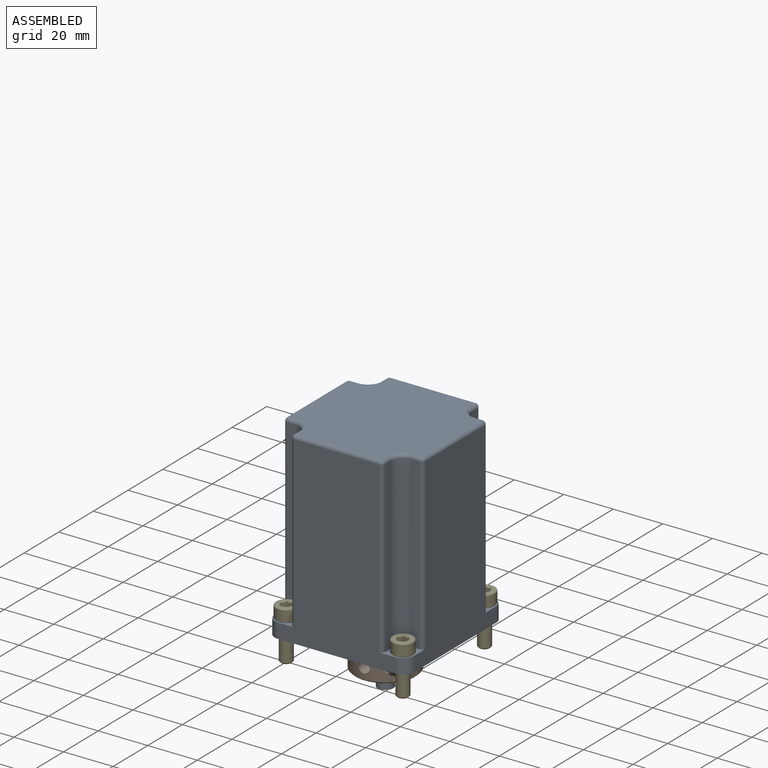
[diagram: assembled view]
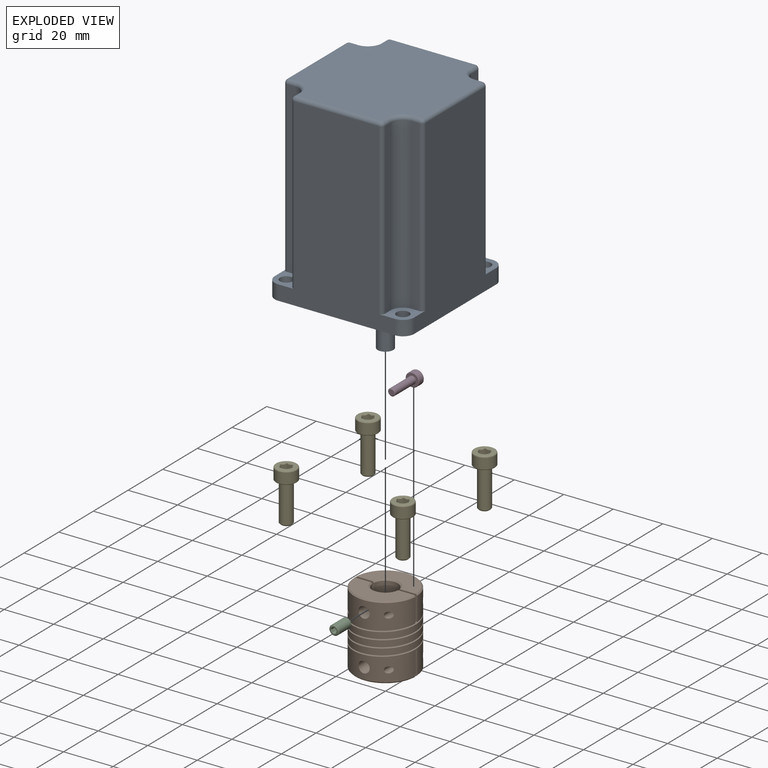
[diagram: exploded view]
GUIDED TOUR — FREECAD ASSEMBLY "NEMA23-76"

This assembly has 5 components, labeled P0..P4 below (a component is one placed body or linked part; the same part can appear more than once), held together by 0 modeled joints plus 4 derived contact edges. A joint is a constraint between two components; its type names the relative motion it leaves free:
  CONTACT — a derived adjacency edge — the two components touch in the source model (clearance under 2% of the assembly's diagonal); it is measured from the geometry, not a modeled constraint.
Axis/direction vectors are unit vectors and 'through' points are millimeter coordinates, both in the assembly's world frame.

MATES
  1. CONTACT "contact_0_1": P0 <-> P1, contact direction (0.000, 0.000, -1.000) through (3.99, 0.90, -1.58) mm (derived from contact, not a modeled constraint)
  2. CONTACT "contact_0_4": P0 <-> P4, contact direction (0.000, 0.000, -1.000) through (25.92, 22.56, 5.98) mm (derived from contact, not a modeled constraint)
  3. CONTACT "contact_1_2": P1 <-> P2, contact direction (0.000, 0.000, 1.000) through (-0.26, -5.00, 7.88) mm (derived from contact, not a modeled constraint)
  4. CONTACT "contact_1_3": P1 <-> P3, contact direction (0.000, 0.000, 1.000) through (6.64, 3.99, 10.74) mm (derived from contact, not a modeled constraint)

ASSEMBLY ORDER
  1. P1 — the base component [order heuristic]
  2. P4 — core [order heuristic]
  3. P3 — core [order heuristic]
  4. P0 — core [order heuristic]
  5. P2 [order verified]
Order-tag legend:
  [order verified] — this step's position reverses a verified removal order: the component was checked to insert without passing through the ones already placed.
  [order heuristic] — the first 4 components form the assembly's core: parts whose collision-free extraction could not be verified, listed in mate-graph order.

Of the 5 components, 2 carry a construction recipe — the FreeCAD feature program (sketches with constraints, then the solid features that consume them) that regenerates the part from scratch, quoted from this document or from the linked companion document it references; the rest are supplied as boundary geometry only. The tour below walks the components in assembly order: each is shown spotlighted twice — in the assembled view, then in the exploded view, where a leader line traces a displaced component back to its assembled socket (components that stay in place when exploded have no leader line; saturated green if recipe-attached, orange if geometry-only; every other component desaturated gray) — followed by its recipe or geometry summary and the mates that hold it.
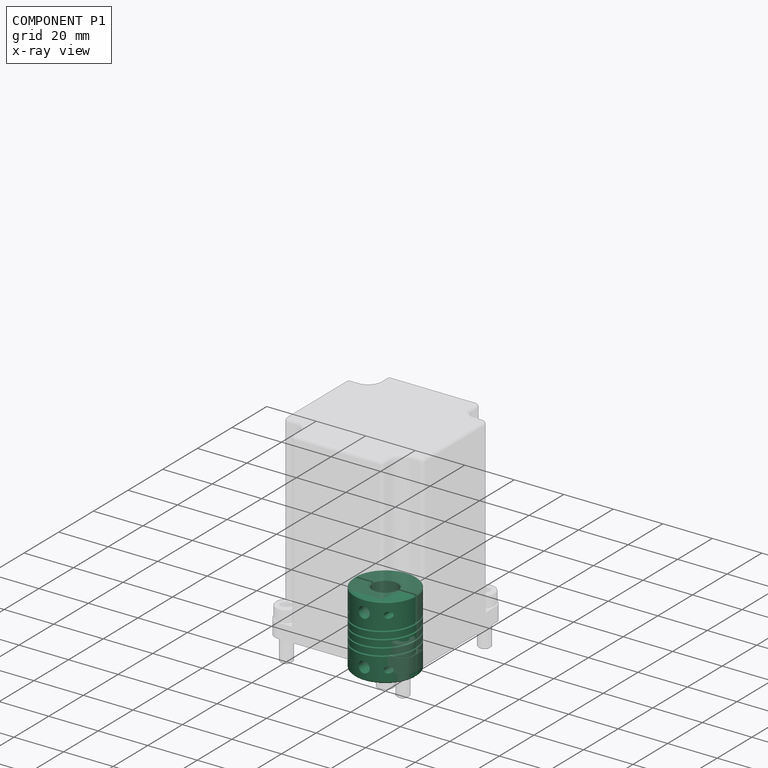
[diagram: component P1 — x-ray view]
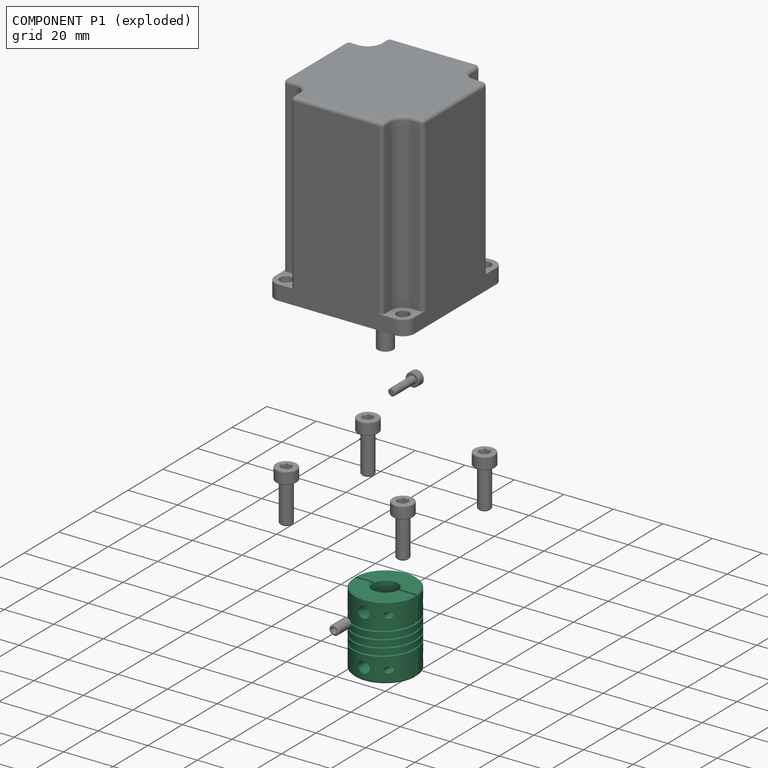
[diagram: component P1 — exploded]
COMPONENT P1 — recipe-attached ("Link001(Coupling)", modeled in this document).
Held by: resting contact with P0 (derived edge); resting contact with P2 (derived edge); resting contact with P3 (derived edge).
Construction recipe (the document's own serialized feature program — sketch geometry with constraints, then the solid features built on it; lengths are millimeters unless a unit is written):

FEATURE [Sketcher::SketchObject] Sketch004
  FullyConstrained = true
  MapMode = 5
  Support = -> [XY_Plane001]
  sketch-geometry (1):
    g0: Circle CenterX=0 CenterY=0 CenterZ=0 NormalX=0 NormalY=0 NormalZ=1 AngleXU=0 Radius=12.5
  constraints (2):
    c: Coincident(g0,g-1)
    c: Diameter(g0) = 25
FEATURE [PartDesign::Pad] Pad004
  ClaimChildren = false
  Direction = (1,1,1)
  Fit = 0
  FitJoin = 0
  InnerFit = 0
  InnerFitJoin = 0
  InnerTaperAngle = 0
  InnerTaperAngleRev = 0
  Length = 30
  Length2 = 100
  Linearize = true
  Midplane = true
  NewSolid = false
  Profile = -> Sketch004
  Refine = true
  Suppress = false
  Type = 0
FEATURE [Sketcher::SketchObject] Sketch005
  FullyConstrained = true
  MapMode = 5
  Placement = pos=(0,0,15) rot=(0,0,1;0rad)
  Support = -> [Pad004]
  sketch-geometry (1):
    g0: Circle CenterX=0 CenterY=0 CenterZ=0 NormalX=0 NormalY=0 NormalZ=1 AngleXU=0 Radius=3.175
  constraints (2):
    c: Coincident(g0,g-1)
    c: Diameter(g0) = 6.35
FEATURE [PartDesign::Pocket] Pocket
  BaseFeature = -> Pad004
  ClaimChildren = false
  Fit = 0
  FitJoin = 0
  InnerFit = 0
  InnerFitJoin = 0
  InnerTaperAngle = 0
  InnerTaperAngleRev = 0
  Length = 5
  Length2 = 100
  Linearize = true
  NewSolid = false
  Profile = -> Sketch005
  Refine = true
  Suppress = false
  Type = 1
FEATURE [Sketcher::SketchObject] Sketch006
  FullyConstrained = true
  MapMode = 5
  Placement = pos=(0,0,15) rot=(0,0,1;0rad)
  Support = -> [Pocket]
  sketch-geometry (1):
    g0: Circle CenterX=0 CenterY=0 CenterZ=0 NormalX=0 NormalY=0 NormalZ=1 AngleXU=0 Radius=5
  constraints (2):
    c: Coincident(g0,g-1)
    c: Diameter(g0) = 10
FEATURE [PartDesign::Pocket] Pocket001
  BaseFeature = -> Pocket
  ClaimChildren = false
  Fit = 0
  FitJoin = 0
  InnerFit = 0
  InnerFitJoin = 0
  InnerTaperAngle = 0
  InnerTaperAngleRev = 0
  Length = 21.5
  Length2 = 100
  Linearize = true
  NewSolid = false
  Profile = -> Sketch006
  Refine = true
  Suppress = false
  Type = 0
FEATURE [Sketcher::SketchObject] Sketch007
  FullyConstrained = true
  MapMode = 5
  Placement = pos=(0,0,15) rot=(0,0,1;0rad)
  Support = -> [Pocket001]
  sketch-geometry (4):
    g0: LineSegment StartX=-11.5 StartY=0.5 StartZ=0 EndX=13.5 EndY=0.5 EndZ=0
    g1: LineSegment StartX=13.5 StartY=0.5 StartZ=0 EndX=13.5 EndY=-0.5 EndZ=0
    g2: LineSegment StartX=13.5 StartY=-0.5 StartZ=0 EndX=-11.5 EndY=-0.5 EndZ=0
    g3: LineSegment StartX=-11.5 StartY=-0.5 StartZ=0 EndX=-11.5 EndY=0.5 EndZ=0
  constraints (11):
    c: Coincident(g0,g1)
    c: Coincident(g1,g2)
    c: Coincident(g2,g3)
    c: Coincident(g3,g0)
    c: Horizontal(g0)
    c: Horizontal(g2)
    c: DistanceY(g1,g1) = 1
    c: Symmetric(g1,g0,g-1)
    c: DistanceX(g2,g2) = 25
    c: Vertical(g3)
    c: DistanceX(g2,g-1) = 11.5
FEATURE [Sketcher::SketchObject] Sketch008
  FullyConstrained = true
  MapMode = 5
  Placement = pos=(0,0,0) rot=(1,0,0;1.5708rad)
  Support = -> [XZ_Plane001]
  sketch-geometry (2):
    g0: Circle CenterX=0 CenterY=10 CenterZ=0 NormalX=0 NormalY=0 NormalZ=1 AngleXU=0 Radius=1.75
    g1: Circle CenterX=0 CenterY=-10 CenterZ=0 NormalX=0 NormalY=0 NormalZ=1 AngleXU=0 Radius=1.75
  constraints (5):
    c: PointOnObject(g0,g-2)
    c: Equal(g1,g0)
    c: Symmetric(g0,g1,g-1)
    c: DistanceY(g1,g0) = 20
    c: Diameter(g0) = 3.5
FEATURE [PartDesign::Hole] Hole
  BaseFeature = -> Pocket001
  ClaimChildren = false
  CustomThreadClearance = 0
  Depth = 25
  DepthType = 1
  Diameter = 4.5
  DrillForDepth = false
  DrillPoint = 1
  DrillPointAngle = 118
  Fit = 0
  FitJoin = 0
  HoleCutCountersinkAngle = 90
  HoleCutCustomValues = false
  HoleCutDepth = 0
  HoleCutDiameter = 6.1
  HoleCutType = 0
  InnerFit = 0
  InnerFitJoin = 0
  ModelThread = false
  NewSolid = false
  Profile = -> Sketch008
  Refine = true
  Reversed = true
  Suppress = false
  Tapered = false
  TaperedAngle = 90
  ThreadClass = 0
  ThreadDepth = 93.5288
  ThreadDepthType = 0
  ThreadDirection = 0
  ThreadFit = 0
  ThreadSize = 0
  ThreadType = 0
  Threaded = false
  UseCustomThreadClearance = false
FEATURE [Sketcher::SketchObject] Sketch009
  FullyConstrained = true
  MapMode = 5
  Placement = pos=(0,0,0) rot=(1,0,0;1.5708rad)
  Support = -> [XZ_Plane001]
  sketch-geometry (2):
    g0: Circle CenterX=8 CenterY=10 CenterZ=0 NormalX=0 NormalY=0 NormalZ=1 AngleXU=0 Radius=1.25
    g1: Circle CenterX=8 CenterY=-10 CenterZ=0 NormalX=0 NormalY=0 NormalZ=1 AngleXU=0 Radius=1.25
  constraints (5):
    c: Symmetric(g0,g1,g-1)
    c: DistanceX(g-1,g0) = 8
    c: DistanceY(g1,g0) = 20
    c: Equal(g0,g1)
    c: Diameter(g0) = 2.5
FEATURE [Sketcher::SketchObject] Sketch010
  FullyConstrained = true
  MapMode = 5
  Placement = pos=(0,0,0) rot=(1,0,0;1.5708rad)
  Support = -> [XZ_Plane001]
  sketch-geometry (2):
    g0: Circle CenterX=8 CenterY=10 CenterZ=0 NormalX=0 NormalY=0 NormalZ=1 AngleXU=0 Radius=1.25
    g1: Circle CenterX=8 CenterY=-10 CenterZ=0 NormalX=0 NormalY=0 NormalZ=1 AngleXU=0 Radius=1.25
  constraints (5):
    c: Symmetric(g0,g1,g-1)
    c: DistanceX(g-1,g0) = 8
    c: DistanceY(g1,g0) = 20
    c: Equal(g0,g1)
    c: Diameter(g0) = 2.5
FEATURE [Sketcher::SketchObject] Sketch011
  AttachmentOffset = pos=(0,0,-4) rot=(0,0,1;0rad)
  FullyConstrained = true
  MapMode = 5
  Placement = pos=(0,4,9e-16) rot=(1,0,0;1.5708rad)
  Support = -> [XZ_Plane001]
  sketch-geometry (2):
    g0: Circle CenterX=8 CenterY=10 CenterZ=0 NormalX=0 NormalY=0 NormalZ=1 AngleXU=0 Radius=1.25
    g1: Circle CenterX=8 CenterY=-10 CenterZ=0 NormalX=0 NormalY=0 NormalZ=1 AngleXU=0 Radius=1.25
  constraints (5):
    c: Symmetric(g0,g1,g-1)
    c: DistanceX(g-1,g0) = 8
    c: DistanceY(g1,g0) = 20
    c: Equal(g0,g1)
    c: Diameter(g0) = 2.5
FEATURE [PartDesign::Hole] Hole001
  BaseFeature = -> Hole
  ClaimChildren = false
  CustomThreadClearance = 0
  Depth = 25
  DepthType = 1
  Diameter = 2.5
  DrillForDepth = false
  DrillPoint = 1
  DrillPointAngle = 118
  Fit = 0
  FitJoin = 0
  HoleCutCountersinkAngle = 90
  HoleCutCustomValues = false
  HoleCutDepth = 0
  HoleCutDiameter = 6.1
  HoleCutType = 0
  InnerFit = 0
  InnerFitJoin = 0
  ModelThread = false
  NewSolid = false
  Profile = -> Sketch009
  Refine = true
  Reversed = true
  Suppress = false
  Tapered = false
  TaperedAngle = 90
  ThreadClass = 0
  ThreadDepth = 93.5621
  ThreadDepthType = 0
  ThreadDirection = 0
  ThreadFit = 0
  ThreadSize = 0
  ThreadType = 0
  Threaded = false
  UseCustomThreadClearance = false
FEATURE [PartDesign::Hole] Hole002
  BaseFeature = -> Hole001
  ClaimChildren = false
  CustomThreadClearance = 0
  Depth = 25
  DepthType = 1
  Diameter = 3.1
  DrillForDepth = false
  DrillPoint = 1
  DrillPointAngle = 118
  Fit = 0
  FitJoin = 0
  HoleCutCountersinkAngle = 90
  HoleCutCustomValues = false
  HoleCutDepth = 0
  HoleCutDiameter = 6.1
  HoleCutType = 0
  InnerFit = 0
  InnerFitJoin = 0
  ModelThread = false
  NewSolid = false
  Profile = -> Sketch010
  Refine = true
  Suppress = false
  Tapered = false
  TaperedAngle = 90
  ThreadClass = 0
  ThreadDepth = 93.56
  ThreadDepthType = 0
  ThreadDirection = 0
  ThreadFit = 0
  ThreadSize = 0
  ThreadType = 0
  Threaded = false
  UseCustomThreadClearance = false
FEATURE [PartDesign::Hole] Hole003
  BaseFeature = -> Hole002
  ClaimChildren = false
  CustomThreadClearance = 0
  Depth = 25
  DepthType = 1
  Diameter = 6
  DrillForDepth = false
  DrillPoint = 1
  DrillPointAngle = 118
  Fit = 0
  FitJoin = 0
  HoleCutCountersinkAngle = 90
  HoleCutCustomValues = false
  HoleCutDepth = 0
  HoleCutDiameter = 6.1
  HoleCutType = 0
  InnerFit = 0
  InnerFitJoin = 0
  ModelThread = false
  NewSolid = false
  Profile = -> Sketch011
  Refine = true
  Suppress = false
  Tapered = false
  TaperedAngle = 90
  ThreadClass = 0
  ThreadDepth = 93.56
  ThreadDepthType = 0
  ThreadDirection = 0
  ThreadFit = 0
  ThreadSize = 0
  ThreadType = 0
  Threaded = false
  UseCustomThreadClearance = false
FEATURE [Sketcher::SketchObject] Sketch012
  AttachmentOffset = pos=(0,0,0) rot=(0,1,0;0.349066rad)
  ExternalGeometry = -> [Hole003]
  FullyConstrained = true
  MapMode = 5
  Placement = pos=(0,0,0) rot=(0.443713,0.633687,0.633687;2.30637rad)
  Support = -> [YZ_Plane001]
  sketch-geometry (4):
    g0: LineSegment StartX=4 StartY=-6.25 StartZ=0 EndX=14 EndY=-6.25 EndZ=0
    g1: LineSegment StartX=14 StartY=-6.25 StartZ=0 EndX=14 EndY=-6.75 EndZ=0
    g2: LineSegment StartX=14 StartY=-6.75 StartZ=0 EndX=4 EndY=-6.75 EndZ=0
    g3: LineSegment StartX=4 StartY=-6.75 StartZ=0 EndX=4 EndY=-6.25 EndZ=0
  constraints (12):
    c: Coincident(g0,g1)
    c: Coincident(g1,g2)
    c: Coincident(g2,g3)
    c: Coincident(g3,g0)
    c: Horizontal(g0)
    c: Horizontal(g2)
    c: Vertical(g1)
    c: Vertical(g3)
    c: DistanceY(g1,g1) = 0.5
    c: DistanceX(g2,g2) = 10
    c: DistanceX(g-1,g0) = 4
    c: DistanceY(g-3,g2) = 8.25
FEATURE [PartDesign::SubtractiveHelix] SubtractiveHelix
  Angle = 0
  Axis = (-2e-16,2e-16,1)
  Base = (0,0,0)
  BaseFeature = -> Hole003
  ClaimChildren = false
  Fit = 0
  FitJoin = 0
  HasBeenEdited = true
  Height = 13
  InnerFit = 0
  InnerFitJoin = 0
  LeftHanded = false
  Mode = 0
  NewSolid = false
  Outside = false
  Pitch = 3
  Profile = -> Sketch012
  ReferenceAxis = -> Sketch012 [V_Axis]
  Refine = true
  Suppress = false
  Turns = 3
FEATURE [PartDesign::Pocket] Pocket002
  BaseFeature = -> SubtractiveHelix
  ClaimChildren = false
  Fit = 0
  FitJoin = 0
  InnerFit = 0
  InnerFitJoin = 0
  InnerTaperAngle = 0
  InnerTaperAngleRev = 0
  Length = 10.5
  Length2 = 100
  Linearize = true
  NewSolid = false
  Profile = -> Sketch007
  Refine = true
  Suppress = false
  Type = 0
FEATURE [Sketcher::SketchObject] Sketch013
  FullyConstrained = true
  MapMode = 5
  Placement = pos=(0,0,-15) rot=(1,0,0;3.14159rad)
  Support = -> [Pocket002]
  sketch-geometry (4):
    g0: LineSegment StartX=-11.5 StartY=0.5 StartZ=0 EndX=13.5 EndY=0.5 EndZ=0
    g1: LineSegment StartX=13.5 StartY=0.5 StartZ=0 EndX=13.5 EndY=-0.5 EndZ=0
    g2: LineSegment StartX=13.5 StartY=-0.5 StartZ=0 EndX=-11.5 EndY=-0.5 EndZ=0
    g3: LineSegment StartX=-11.5 StartY=-0.5 StartZ=0 EndX=-11.5 EndY=0.5 EndZ=0
  constraints (11):
    c: Coincident(g0,g1)
    c: Coincident(g1,g2)
    c: Coincident(g2,g3)
    c: Coincident(g3,g0)
    c: Horizontal(g0)
    c: Horizontal(g2)
    c: Vertical(g3)
    c: DistanceY(g1,g1) = 1
    c: Symmetric(g1,g0,g-1)
    c: DistanceX(g2,g2) = 25
    c: DistanceX(g2,g-1) = 11.5
FEATURE [PartDesign::Pocket] Pocket003
  BaseFeature = -> Pocket002
  ClaimChildren = false
  Fit = 0
  FitJoin = 0
  InnerFit = 0
  InnerFitJoin = 0
  InnerTaperAngle = 0
  InnerTaperAngleRev = 0
  Length = 10
  Length2 = 100
  Linearize = true
  NewSolid = false
  Profile = -> Sketch013
  Refine = true
  Suppress = false
  Type = 0
FEATURE [PartDesign::Chamfer] Chamfer
  Angle = 45
  Base = -> Pocket003 [Edge115,Edge1,Edge17,Edge21,Edge138,Edge143]
  BaseFeature = -> Pocket003
  ChamferType = 0
  FlipDirection = false
  NewSolid = false
  Refine = true
  Size = 0.5
  Size2 = 1
  SupportTransform = false
  Suppress = false
FEATURE [PartDesign::Body] Body001  label="Coupling"
  AutoGroupSolids = false
  ExportMode = 0
  Group = -> [Sketch004,Pad004,Sketch005,Pocket,Sketch006,Pocket001,Sketch007,Sketch008,Hole,Sketch009,Sketch010,Sketch011,Hole001,Hole002,Hole003,Sketch012,SubtractiveHelix,Pocket002,Sketch013,Pocket003,Chamfer]
  Origin = -> Origin001
  Placement = pos=(0,0,-51) rot=(0,0,1;0rad)
  Tip = -> Chamfer
  _ExportChildren = -> [Pad004,Pocket,Pocket001,Hole,Hole001,Hole002,Hole003,SubtractiveHelix,Pocket002,Pocket003,Chamfer]
  _GroupVersion = 1
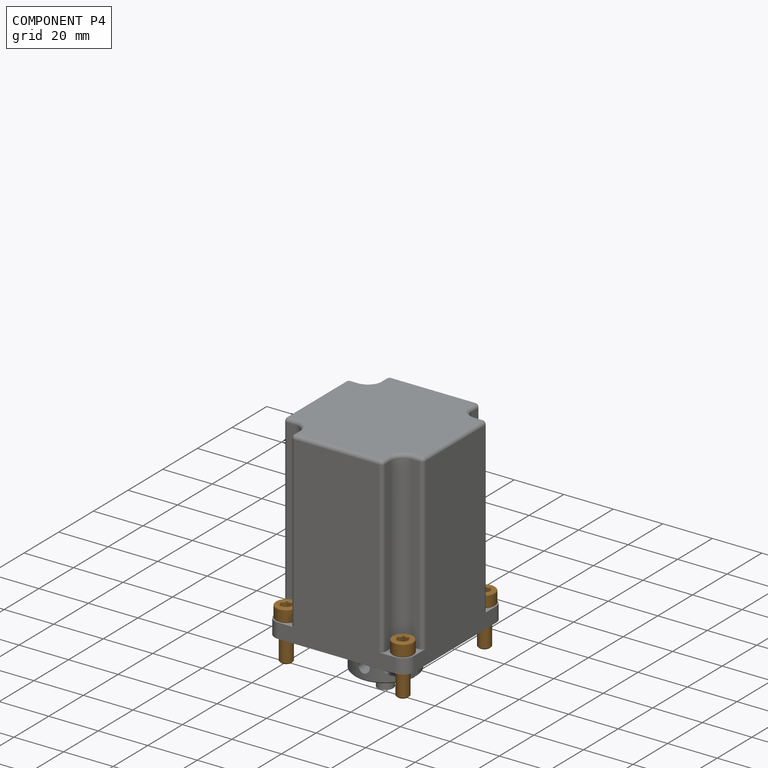
[diagram: component P4 — assembled]
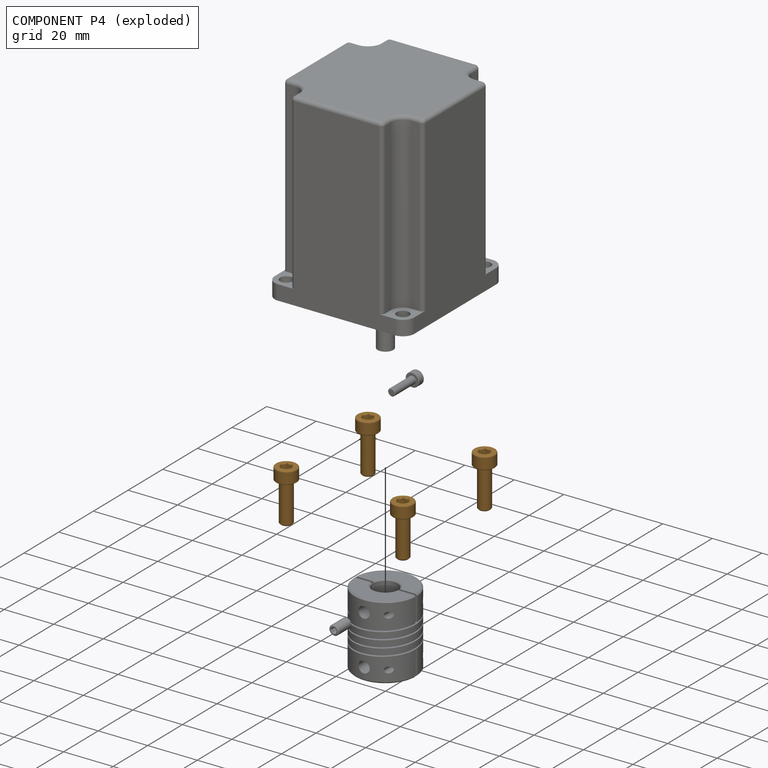
[diagram: component P4 — exploded]
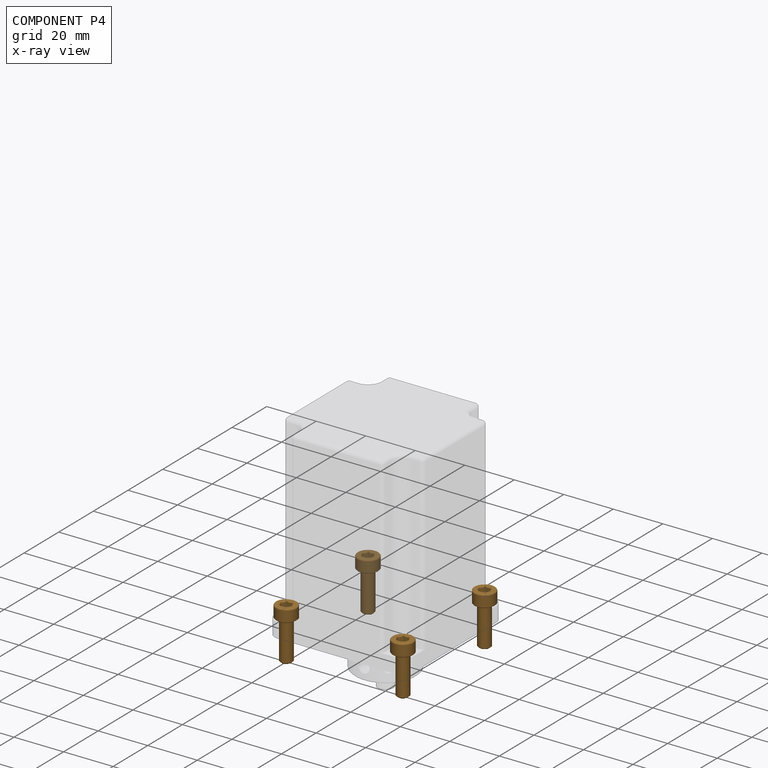
[diagram: component P4 — x-ray view]
COMPONENT P4 — geometry summary ("M5x16-Screw 4ct"; no construction recipe available for this part):
  bounding box: 55.6 x 55.6 x 21.0 mm
  tessellated surface: 63,896 triangles
  volume: 2198 mm^3 (3% of its bounding box)
  symmetry: 4-fold rotationally symmetric about the z axis; mirror-symmetric across its x mid-plane, y mid-plane
Held by: resting contact with P0 (derived edge).
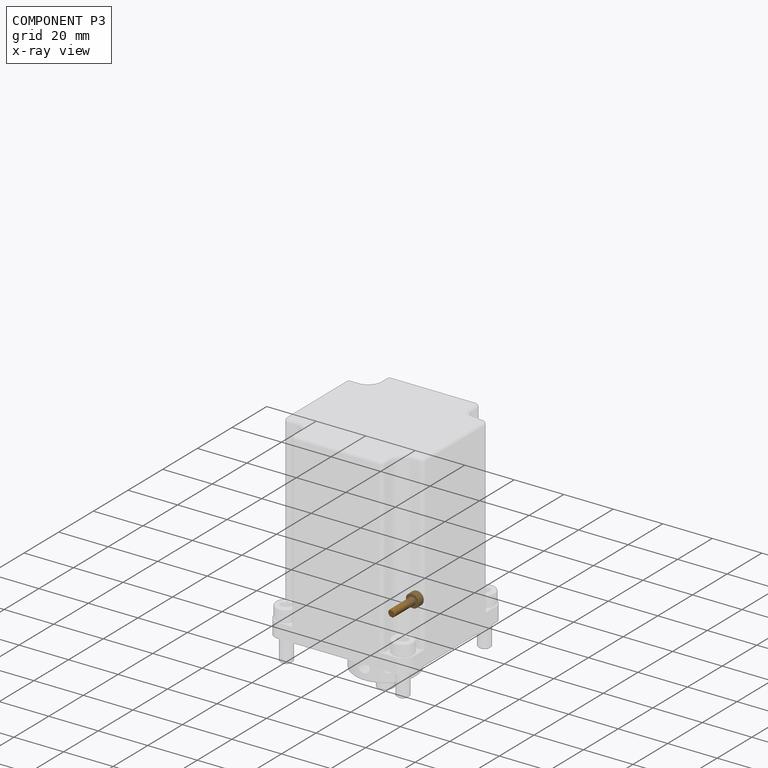
[diagram: component P3 — x-ray view]
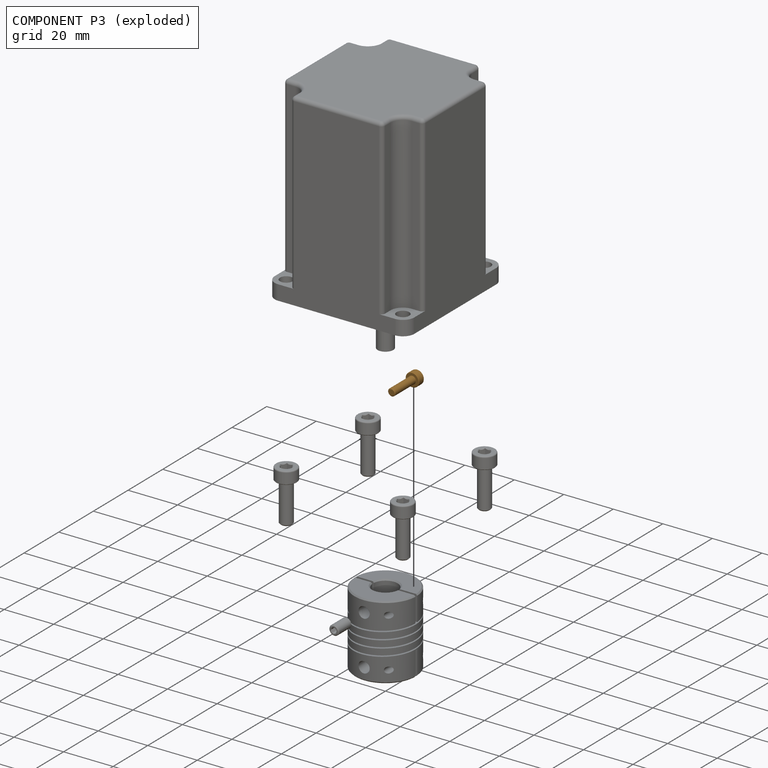
[diagram: component P3 — exploded]
COMPONENT P3 — geometry summary ("Link003(M3x12-Screw)"; no construction recipe available for this part):
  bounding box: 15.0 x 5.5 x 5.5 mm
  tessellated surface: 10,544 triangles
  volume: 145 mm^3 (32% of its bounding box)
  symmetry: revolution-symmetric about the y axis through its bounding-box center; mirror-symmetric across its x mid-plane
Held by: resting contact with P1 (derived edge).
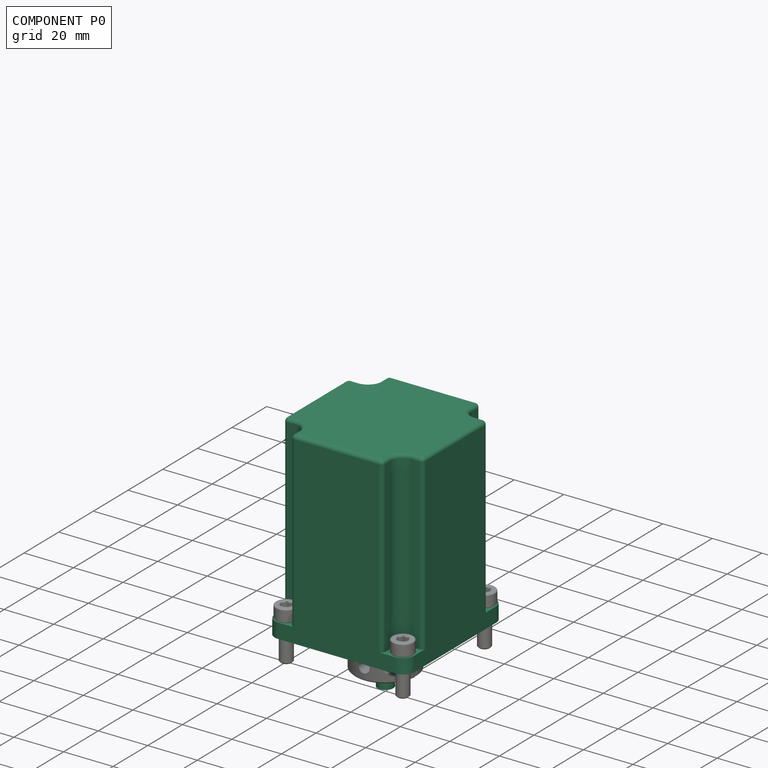
[diagram: component P0 — assembled]
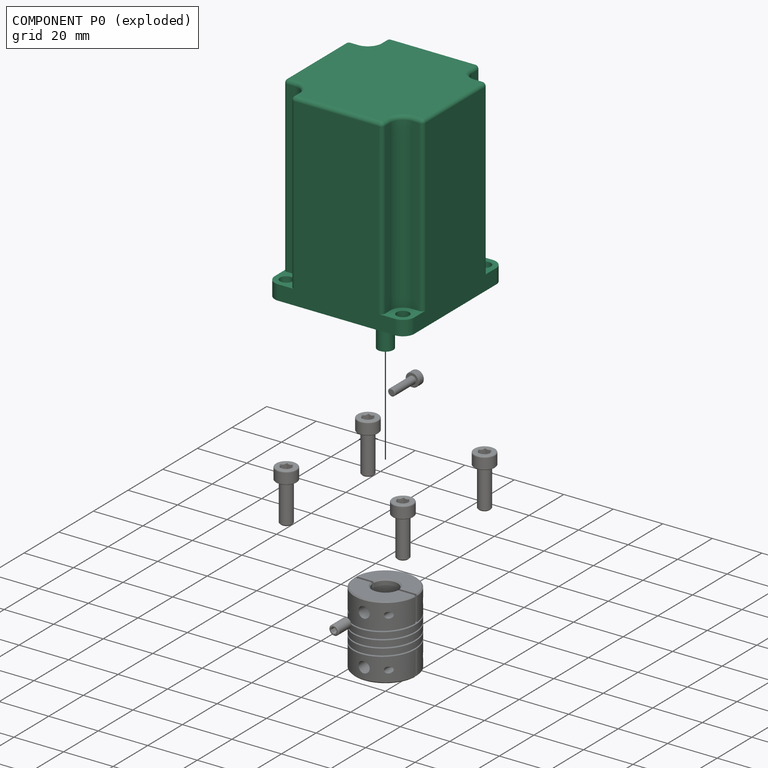
[diagram: component P0 — exploded]
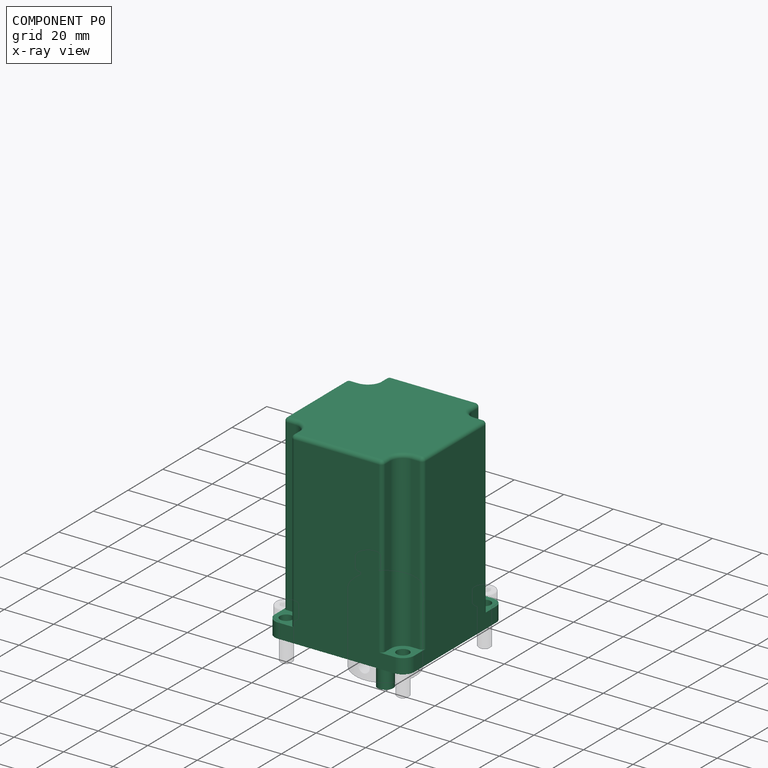
[diagram: component P0 — x-ray view]
COMPONENT P0 — recipe-attached ("Link(Nema23)", modeled in this document).
Held by: resting contact with P1 (derived edge); resting contact with P4 (derived edge).
Construction recipe (the document's own serialized feature program — sketch geometry with constraints, then the solid features built on it; lengths are millimeters unless a unit is written):

FEATURE [Sketcher::SketchObject] Sketch
  FullyConstrained = true
  MapMode = 5
  Support = -> [XY_Plane]
  sketch-geometry (16):
    g0: LineSegment StartX=-23.55 StartY=28.2 StartZ=0 EndX=23.55 EndY=28.2 EndZ=0
    g1: LineSegment StartX=28.2 StartY=23.55 StartZ=0 EndX=28.2 EndY=-23.55 EndZ=0
    g2: LineSegment StartX=23.55 StartY=-28.2 StartZ=0 EndX=-23.55 EndY=-28.2 EndZ=0
    g3: LineSegment StartX=-28.2 StartY=-23.55 StartZ=0 EndX=-28.2 EndY=23.55 EndZ=0
    g4: ArcOfCircle CenterX=-23.55 CenterY=23.55 CenterZ=0 NormalX=0 NormalY=0 NormalZ=1 AngleXU=0 Radius=4.65 StartAngle=1.5708 EndAngle=3.14159
    g5: GeomPoint [constr] X=-28.2 Y=28.2 Z=0
    g6: ArcOfCircle CenterX=23.55 CenterY=23.55 CenterZ=0 NormalX=0 NormalY=0 NormalZ=1 AngleXU=0 Radius=4.65 StartAngle=0 EndAngle=1.5708
    g7: GeomPoint [constr] X=28.2 Y=28.2 Z=0
    g8: ArcOfCircle CenterX=23.55 CenterY=-23.55 CenterZ=0 NormalX=0 NormalY=0 NormalZ=1 AngleXU=0 Radius=4.65 StartAngle=4.71239 EndAngle=6.28319
    g9: GeomPoint [constr] X=28.2 Y=-28.2 Z=0
    g10: ArcOfCircle CenterX=-23.55 CenterY=-23.55 CenterZ=0 NormalX=0 NormalY=0 NormalZ=1 AngleXU=0 Radius=4.65 StartAngle=3.14159 EndAngle=4.71239
    g11: GeomPoint [constr] X=-28.2 Y=-28.2 Z=0
    g12: Circle CenterX=-23.55 CenterY=23.55 CenterZ=0 NormalX=0 NormalY=0 NormalZ=1 AngleXU=0 Radius=2.55
    g13: Circle CenterX=23.55 CenterY=23.55 CenterZ=0 NormalX=0 NormalY=0 NormalZ=1 AngleXU=0 Radius=2.55
    g14: Circle CenterX=23.55 CenterY=-23.55 CenterZ=0 NormalX=0 NormalY=0 NormalZ=1 AngleXU=0 Radius=2.55
    g15: Circle CenterX=-23.55 CenterY=-23.55 CenterZ=0 NormalX=0 NormalY=0 NormalZ=1 AngleXU=0 Radius=2.55
  constraints (35):
    c: Horizontal(g0)
    c: Horizontal(g2)
    c: Vertical(g1)
    c: Vertical(g3)
    c: Symmetric(g9,g5,g-1)
    c: PointOnObject(g5,g0)
    c: PointOnObject(g5,g3)
    c: Tangent(g0,g4) = 1.5708
    c: Tangent(g3,g4) = 1.5708
    c: PointOnObject(g7,g0)
    c: PointOnObject(g7,g1)
    c: Tangent(g0,g6) = 1.5708
    c: Tangent(g1,g6) = 1.5708
    c: PointOnObject(g9,g1)
    c: PointOnObject(g9,g2)
    c: Tangent(g1,g8) = 1.5708
    c: Tangent(g2,g8) = 1.5708
    c: PointOnObject(g11,g2)
    c: PointOnObject(g11,g3)
    c: Tangent(g2,g10) = 1.5708
    c: Tangent(g3,g10) = 1.5708
    c: Equal(g10,g8)
    c: Equal(g8,g6)
    c: Equal(g6,g4)
    c: Equal(g0,g1)
    c: DistanceX(g3,g1) = 56.4
    c: Coincident(g12,g4)
    c: Coincident(g13,g6)
    c: Coincident(g14,g8)
    c: Coincident(g15,g10)
    c: Equal(g15,g14)
    c: Equal(g14,g13)
    c: Equal(g13,g12)
    c: Diameter(g12) = 5.1
    c: DistanceX(g4,g6) = 47.1
FEATURE [PartDesign::Pad] Pad
  ClaimChildren = false
  Direction = (1,1,1)
  Fit = 0
  FitJoin = 0
  InnerFit = 0
  InnerFitJoin = 0
  InnerTaperAngle = 0
  InnerTaperAngleRev = 0
  Length = 6
  Length2 = 100
  Linearize = true
  NewSolid = false
  Profile = -> Sketch
  Refine = true
  Suppress = false
  Type = 0
FEATURE [Sketcher::SketchObject] Sketch001
  ExternalGeometry = -> [Pad]
  FullyConstrained = true
  MapMode = 5
  Placement = pos=(0,0,6) rot=(0,0,1;0rad)
  Support = -> [Pad]
  sketch-geometry (16):
    g0: LineSegment StartX=-18.55 StartY=28.2 StartZ=0 EndX=18.55 EndY=28.2 EndZ=0
    g1: LineSegment StartX=28.2 StartY=18.55 StartZ=0 EndX=28.2 EndY=-18.55 EndZ=0
    g2: LineSegment StartX=18.55 StartY=-28.2 StartZ=0 EndX=-18.55 EndY=-28.2 EndZ=0
    g3: LineSegment StartX=-28.2 StartY=-18.55 StartZ=0 EndX=-28.2 EndY=18.55 EndZ=0
    g4: ArcOfCircle CenterX=-23.55 CenterY=23.55 CenterZ=0 NormalX=0 NormalY=0 NormalZ=1 AngleXU=0 Radius=5 StartAngle=4.71239 EndAngle=6.28319
    g5: ArcOfCircle CenterX=23.55 CenterY=23.55 CenterZ=0 NormalX=0 NormalY=0 NormalZ=1 AngleXU=0 Radius=5 StartAngle=3.14159 EndAngle=4.71239
    g6: ArcOfCircle CenterX=23.55 CenterY=-23.55 CenterZ=0 NormalX=0 NormalY=0 NormalZ=1 AngleXU=0 Radius=5 StartAngle=1.5708 EndAngle=3.14159
    g7: ArcOfCircle CenterX=-23.55 CenterY=-23.55 CenterZ=0 NormalX=0 NormalY=0 NormalZ=1 AngleXU=0 Radius=5 StartAngle=1e-16 EndAngle=1.5708
    g8: LineSegment StartX=-18.55 StartY=28.2 StartZ=0 EndX=-18.55 EndY=23.55 EndZ=0
    g9: LineSegment StartX=-23.55 StartY=18.55 StartZ=0 EndX=-28.2 EndY=18.55 EndZ=0
    g10: LineSegment StartX=18.55 StartY=23.55 StartZ=0 EndX=18.55 EndY=28.2 EndZ=0
    g11: LineSegment StartX=23.55 StartY=18.55 StartZ=0 EndX=28.2 EndY=18.55 EndZ=0
    g12: LineSegment StartX=23.55 StartY=-18.55 StartZ=0 EndX=28.2 EndY=-18.55 EndZ=0
    g13: LineSegment StartX=18.55 StartY=-23.55 StartZ=0 EndX=18.55 EndY=-28.2 EndZ=0
    g14: LineSegment StartX=-18.55 StartY=-23.55 StartZ=0 EndX=-18.55 EndY=-28.2 EndZ=0
    g15: LineSegment StartX=-23.55 StartY=-18.55 StartZ=0 EndX=-28.2 EndY=-18.55 EndZ=0
  constraints (40):
    c: Horizontal(g0)
    c: Horizontal(g2)
    c: Vertical(g1)
    c: Vertical(g3)
    c: Coincident(g4,g-4)
    c: Vertical(g7,g4)
    c: Horizontal(g4,g5)
    c: Vertical(g5,g6)
    c: Horizontal(g7,g6)
    c: Symmetric(g6,g4,g-1)
    c: Equal(g5,g4)
    c: Equal(g4,g7)
    c: Equal(g7,g6)
    c: Diameter(g4) = 10
    c: Vertical(g10)
    c: Horizontal(g11)
    c: Horizontal(g12)
    c: Vertical(g14)
    c: Vertical(g8)
    c: Horizontal(g9)
    c: Coincident(g0,g8)
    c: Coincident(g3,g9)
    c: Coincident(g0,g10)
    c: Coincident(g1,g11)
    c: Coincident(g1,g12)
    c: Coincident(g2,g13)
    c: Tangent(g6,g13) = -1.5708
    c: Coincident(g3,g15)
    c: Tangent(g7,g14) = 1.5708
    c: Coincident(g2,g14)
    c: Tangent(g7,g15) = -1.5708
    c: Tangent(g6,g12) = 1.5708
    c: Tangent(g5,g10) = 1.5708
    c: Tangent(g5,g11) = -1.5708
    c: Tangent(g4,g8) = 1.5708
    c: Tangent(g4,g9) = 1.5708
    c: Horizontal(g0,g-4)
    c: Vertical(g3,g-4)
    c: Symmetric(g2,g0,g-1)
    c: Symmetric(g1,g3,g-2)
FEATURE [PartDesign::Pad] Pad001
  BaseFeature = -> Pad
  ClaimChildren = false
  Direction = (1,1,1)
  Fit = 0
  FitJoin = 0
  InnerFit = 0
  InnerFitJoin = 0
  InnerTaperAngle = 0
  InnerTaperAngleRev = 0
  Length = 70
  Length2 = 100
  Linearize = true
  NewSolid = false
  Profile = -> Sketch001
  Refine = true
  Suppress = false
  Type = 0
FEATURE [Sketcher::SketchObject] Sketch002
  FullyConstrained = true
  MapMode = 5
  Placement = pos=(0,0,0) rot=(1,0,0;3.14159rad)
  Support = -> [Pad001]
  sketch-geometry (1):
    g0: Circle CenterX=0 CenterY=0 CenterZ=0 NormalX=0 NormalY=0 NormalZ=1 AngleXU=0 Radius=19.05
  constraints (2):
    c: Coincident(g0,g-1)
    c: Diameter(g0) = 38.1
FEATURE [PartDesign::Pad] Pad002
  BaseFeature = -> Pad001
  ClaimChildren = false
  Direction = (1,1,1)
  Fit = 0
  FitJoin = 0
  InnerFit = 0
  InnerFitJoin = 0
  InnerTaperAngle = 0
  InnerTaperAngleRev = 0
  Length = 1.6
  Length2 = 100
  Linearize = true
  NewSolid = false
  Profile = -> Sketch002
  Refine = true
  Suppress = false
  Type = 0
FEATURE [Sketcher::SketchObject] Sketch003
  FullyConstrained = true
  MapMode = 5
  Placement = pos=(0,0,-1.6) rot=(1,0,0;3.14159rad)
  Support = -> [Pad002]
  sketch-geometry (1):
    g0: Circle CenterX=0 CenterY=0 CenterZ=0 NormalX=0 NormalY=0 NormalZ=1 AngleXU=0 Radius=3.175
  constraints (2):
    c: Coincident(g0,g-1)
    c: Diameter(g0) = 6.35
FEATURE [PartDesign::Pad] Pad003
  BaseFeature = -> Pad002
  ClaimChildren = false
  Direction = (1,1,1)
  Fit = 0
  FitJoin = 0
  InnerFit = 0
  InnerFitJoin = 0
  InnerTaperAngle = 0
  InnerTaperAngleRev = 0
  Length = 20
  Length2 = 100
  Linearize = true
  NewSolid = false
  Profile = -> Sketch003
  Refine = true
  Suppress = false
  Type = 0
FEATURE [PartDesign::Fillet] Fillet
  Base = -> Pad003 [Edge71,Edge8,Edge6,Edge16,Edge14,Edge68,Edge67,Edge72,Edge39,Edge40,Edge43,Edge44,Edge15,Edge47,Edge7,Edge36]
  BaseFeature = -> Pad003
  NewSolid = false
  Radius = 1.5
  Refine = true
  SupportTransform = false
  Suppress = false
FEATURE [PartDesign::Line] DatumLine
  AttacherType = Attacher::AttachEngineLine
  Length = 97.6
  MapMode = 19
  MinimumLength = 10
  Placement = pos=(0,0,-21.6) rot=(-1,0,0;3.14159rad)
  ResizeMode = 0
  Support = -> [Fillet]
FEATURE [PartDesign::Body] Body  label="Nema23"
  AutoGroupSolids = false
  ExportMode = 0
  Group = -> [Sketch,Pad,Sketch001,Pad001,Sketch002,Pad002,Sketch003,Pad003,Fillet,DatumLine]
  Origin = -> Origin
  Tip = -> Fillet
  _ExportChildren = -> [Pad,Pad001,Pad002,Pad003,Fillet,DatumLine]
  _GroupVersion = 1
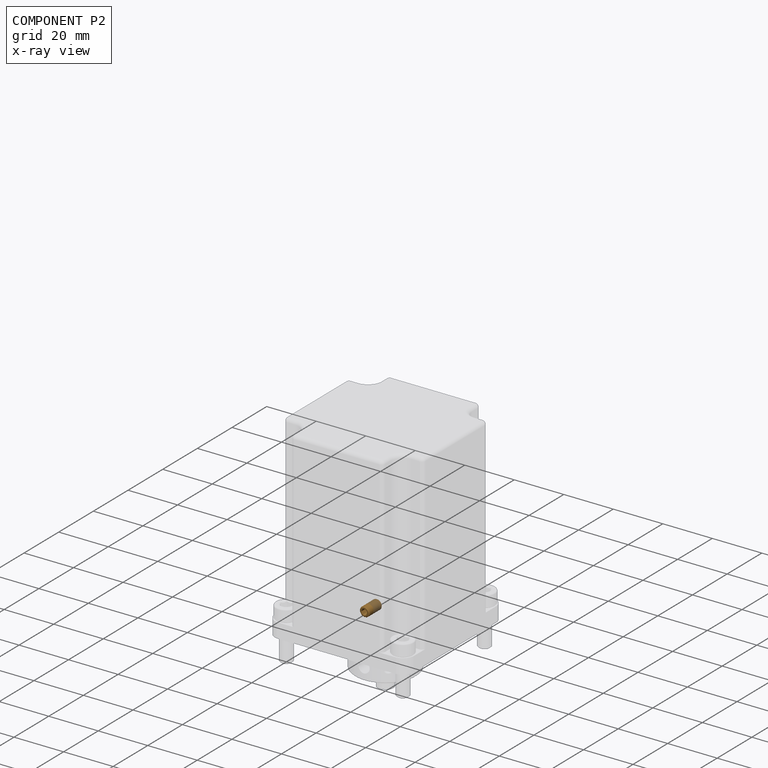
[diagram: component P2 — x-ray view]
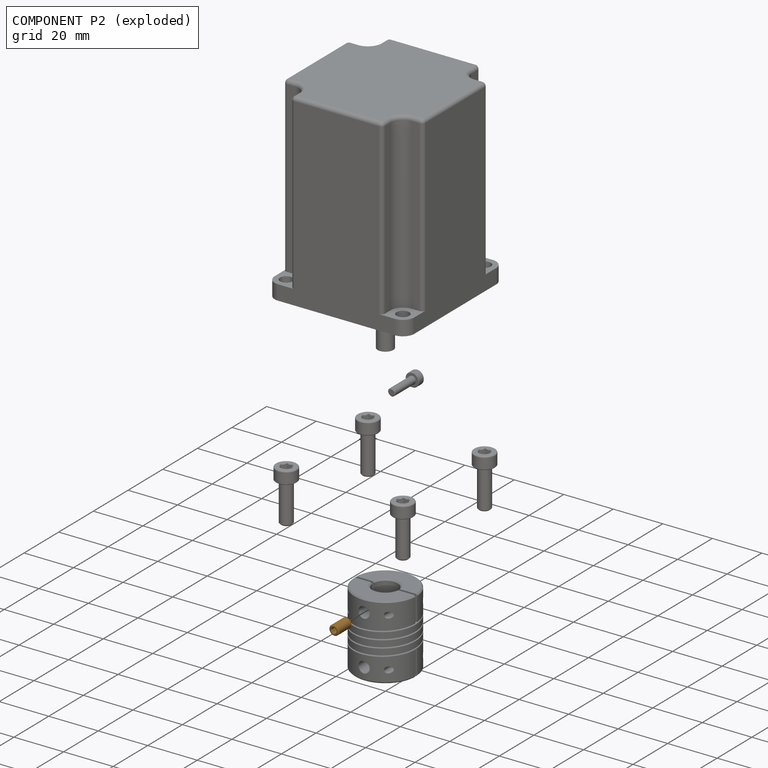
[diagram: component P2 — exploded]
COMPONENT P2 — geometry summary ("Link002(M4x8-Screw)"; no construction recipe available for this part):
  bounding box: 8.0 x 4.0 x 4.0 mm
  tessellated surface: 3,724 triangles
  volume: 90 mm^3 (69% of its bounding box)
  symmetry: revolution-symmetric about the y axis through its bounding-box center; mirror-symmetric across its x mid-plane, z mid-plane
Held by: resting contact with P1 (derived edge).
PROVENANCE & LICENSES
Assembly and component geometry: a FreeCAD (.FCStd) document from a public repository crawl; components, placements and joints were extracted with FreeCAD and each solid tessellated.
Construction recipes: the document's own serialized feature recipes (and, for linked parts, the recipes of companion documents from the same project).
License: mit.
Joints: native FreeCAD joints and A2plus constraints are mapped to standard mate types; edges marked 'derived from contact' connect touching components and are measured from the geometry, not modeled.
Verification: 2 of this assembly's 5 components carry a construction recipe (2 from this document itself); the rest are geometry-only. Every component's tessellation passed the extraction mesh gates (mesh-volume checksum against the B-rep where available, bounding-box inflation <= 2%).
Renders: orthographic iso camera (az 35 / el 25); the floor grid conveys scale (grid pitch printed in each image; no ruler). In the exploded view each component is displaced by its stored offset vector: the offsets alone carry the explosion direction (mate normal/axis signs are not orientation cues and do not encode it), and separation distances are assigned per mate-chain, not proportionally to assembly-order depth.
